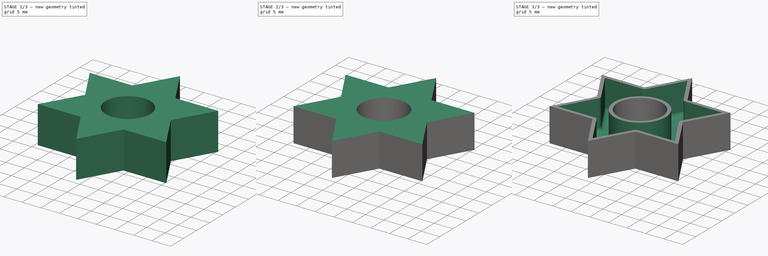
[diagram: build sequence overview — one tinted view per stage of 3, left to right]
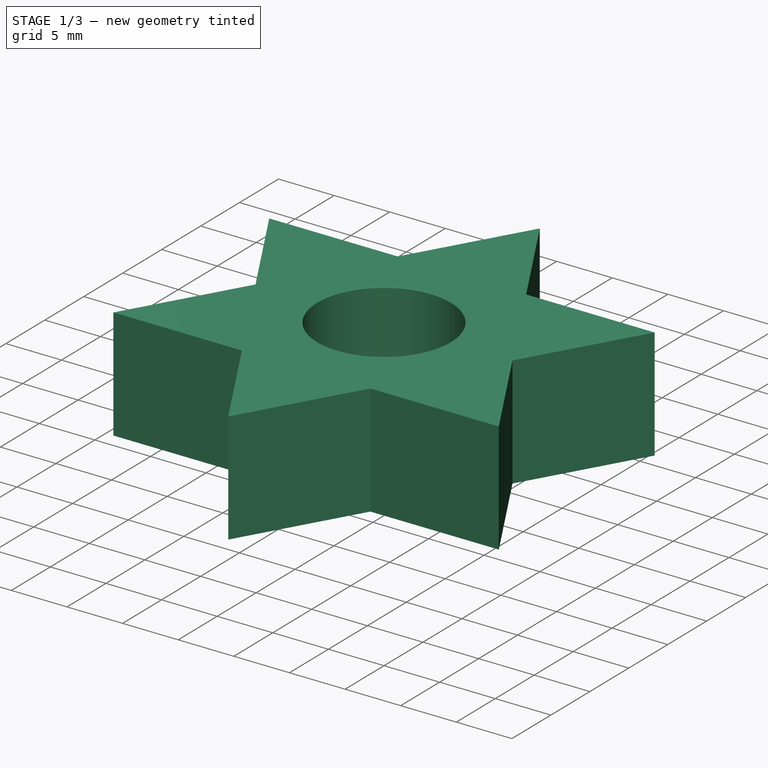
[diagram: stage 1 of 3 — iso view after this stage's code; geometry added in this stage tinted green]
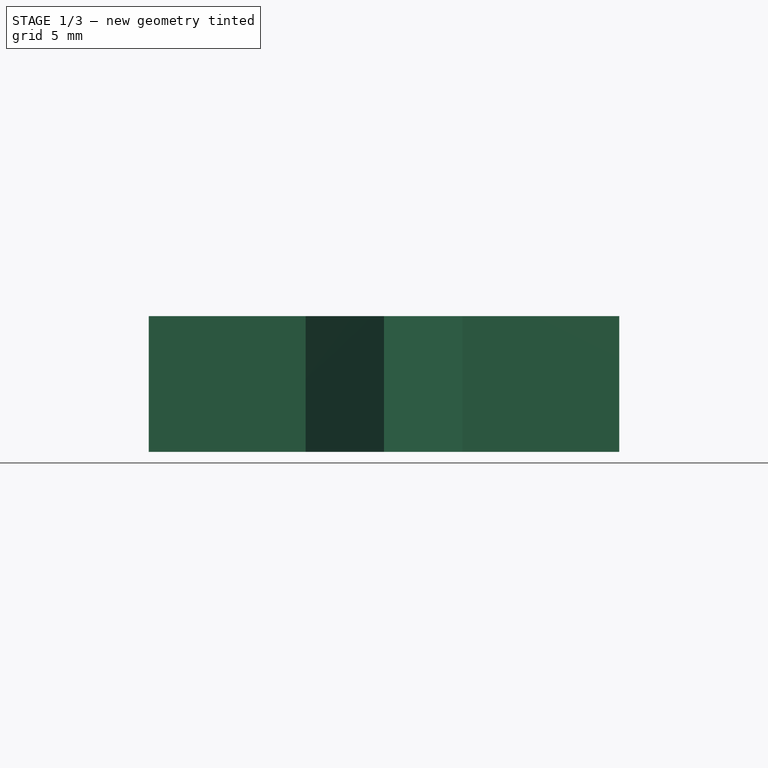
[diagram: stage 1 of 3 — front view after this stage's code; geometry added in this stage tinted green]
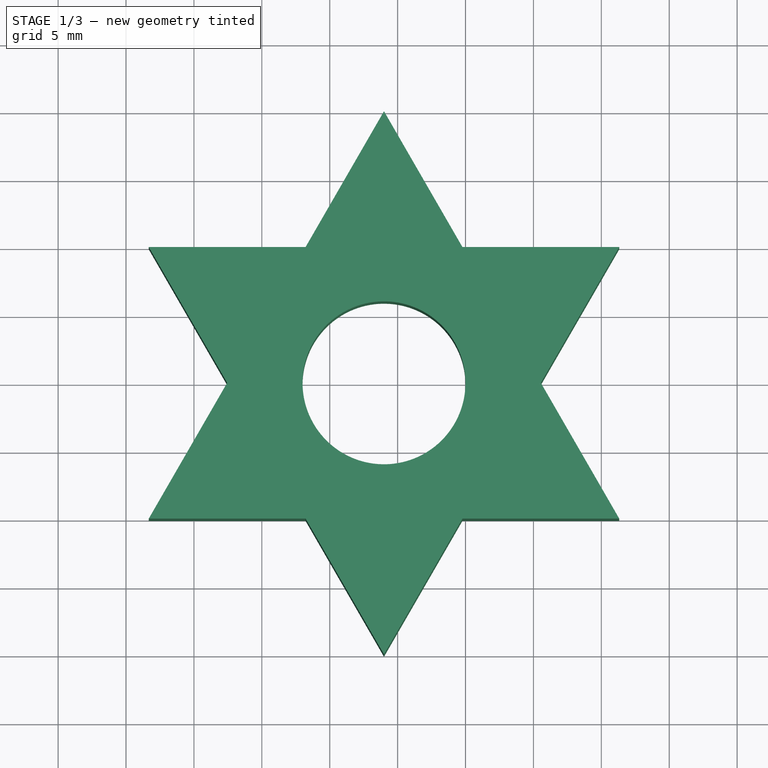
[diagram: stage 1 of 3 — top view after this stage's code; geometry added in this stage tinted green]
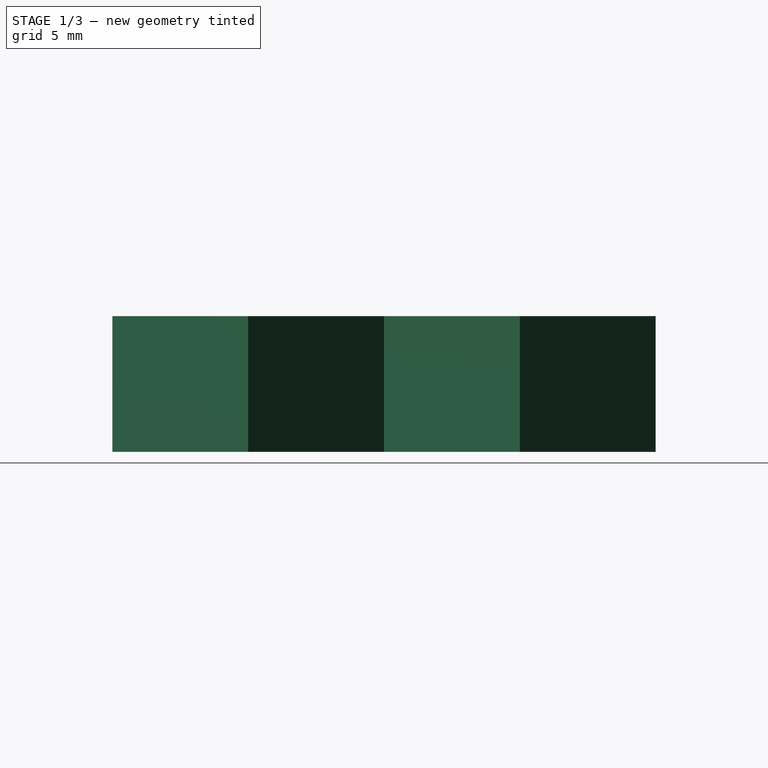
[diagram: stage 1 of 3 — right view after this stage's code; geometry added in this stage tinted green]
FCSTD DOCUMENT  (FreeCAD 0.20R25065 (Git))
Label: perimeter_overlap
License: All rights reserved
LicenseURL: http://en.wikipedia.org/wiki/All_rights_reserved
objects: Sketcher::SketchObject×2, PartDesign::Pad×1, PartDesign::PolarPattern×1, PartDesign::Pocket×1, PartDesign::Thickness×1, PartDesign::Fillet×1, PartDesign::Body×1
note: 12 computed .brp shape members not serialized (recipe doc carries the construction recipe); baked Part::Feature solids carry a one-line shape summary decoded from their .brp

FEATURE [Sketcher::SketchObject] Sketch001
  FullyConstrained = false
  MapMode = 5
  Support = -> [XY_Plane]
  sketch-geometry (7):
    g0: LineSegment StartX=0 StartY=0 StartZ=0 EndX=48 EndY=40 EndZ=0
    g1: LineSegment StartX=48 StartY=0 StartZ=0 EndX=0.0294474 EndY=39.9617 EndZ=0
    g2: LineSegment StartX=41.3194 StartY=9.99484 StartZ=0 EndX=23.9959 EndY=40 EndZ=0
    g3: LineSegment StartX=23.9959 StartY=40 StartZ=0 EndX=6.67239 EndY=9.99484 EndZ=0
    g4: LineSegment StartX=6.67239 StartY=9.99484 StartZ=0 EndX=41.3194 EndY=9.99484 EndZ=0
    g5: Circle CenterX=23.9959 CenterY=19.9966 CenterZ=0 NormalX=0 NormalY=0 NormalZ=1 AngleXU=0 Radius=20.0034
    g6: Circle CenterX=23.9959 CenterY=19.9966 CenterZ=0 NormalX=0 NormalY=0 NormalZ=1 AngleXU=0 Radius=6
  constraints (14):
    c: Coincident(g0,g-1)
    c: Coincident(g2,g3)
    c: Coincident(g3,g4)
    c: Coincident(g4,g2)
    c: Equal(g2,g3)
    c: Equal(g2,g4)
    c: PointOnObject(g2,g5)
    c: PointOnObject(g3,g5)
    c: PointOnObject(g4,g5)
    c: PointOnObject(g5,g1)
    c: Horizontal(g4)
    c: PointOnObject(g5,g0)
    c: Coincident(g6,g5)
    c: Diameter(g6) = 12
FEATURE [PartDesign::Pad] Pad001
  Direction = (0,0,1)
  Length = 10
  Length2 = 100
  Profile = -> Sketch001
  Type = 0
FEATURE [PartDesign::PolarPattern] PolarPattern
  Angle = 360
  Axis = -> Pad001 [Edge12]
  BaseFeature = -> Pad001
  Occurrences = 2
  Originals = -> [Pad001]
  Overlap = 0
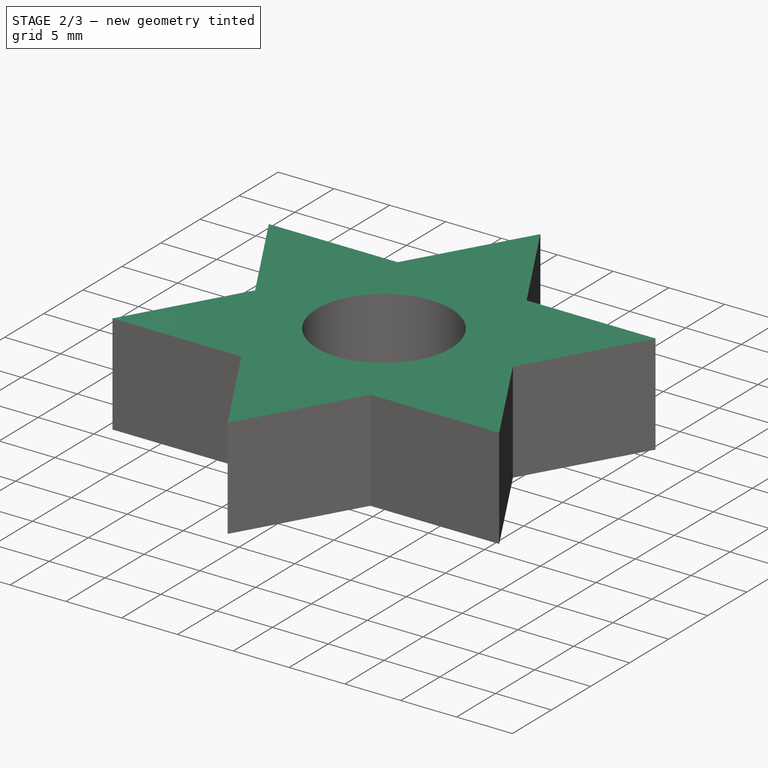
[diagram: stage 2 of 3 — iso view after this stage's code; geometry added in this stage tinted green]
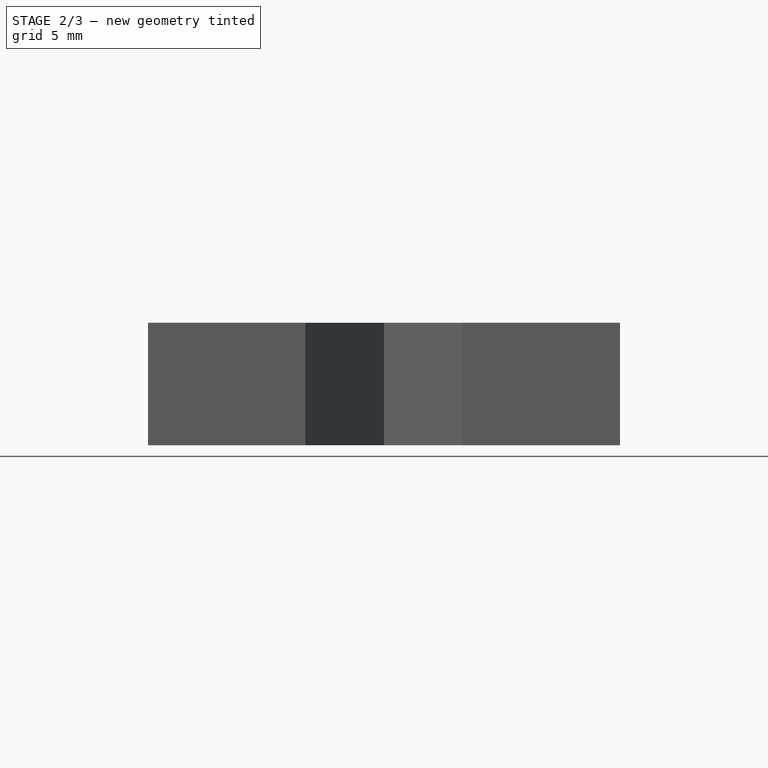
[diagram: stage 2 of 3 — front view after this stage's code; geometry added in this stage tinted green]
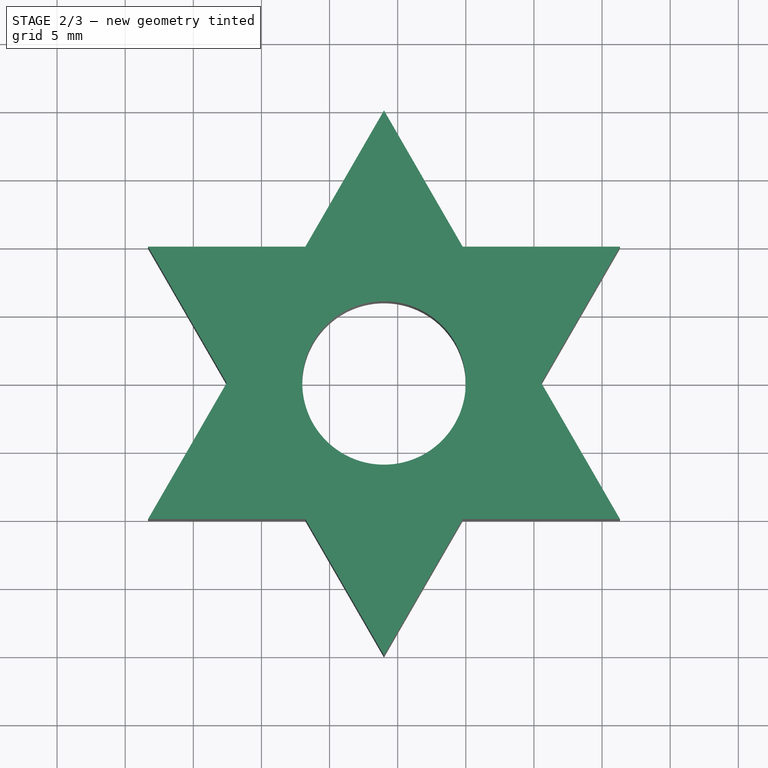
[diagram: stage 2 of 3 — top view after this stage's code; geometry added in this stage tinted green]
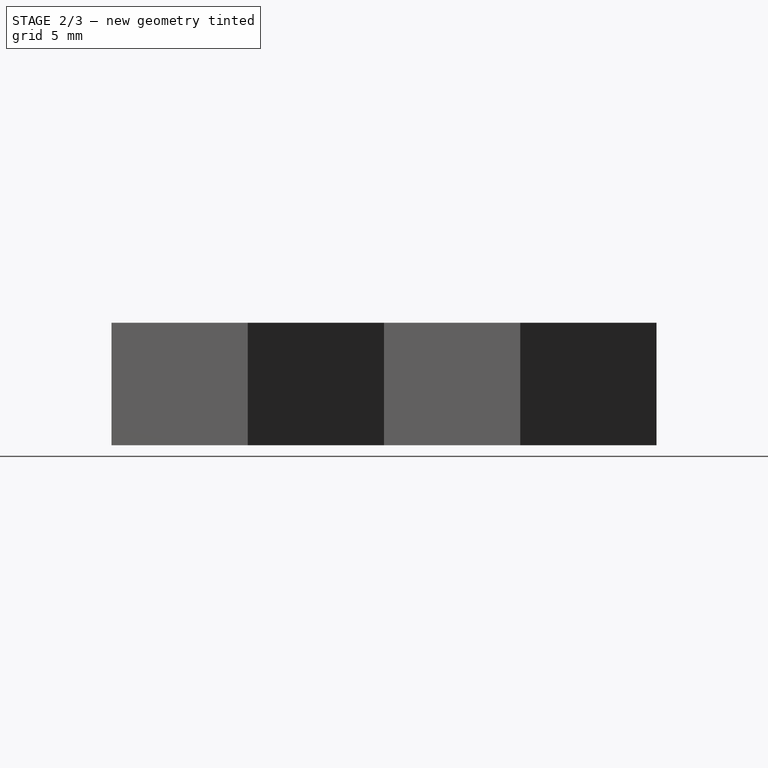
[diagram: stage 2 of 3 — right view after this stage's code; geometry added in this stage tinted green]
FEATURE [Sketcher::SketchObject] Sketch002
  FullyConstrained = false
  MapMode = 5
  Placement = pos=(0,0,10) rot=(0,0,1;0rad)
  Support = -> [PolarPattern]
  sketch-geometry (4):
    g0: LineSegment StartX=-10.0632 StartY=49.7722 StartZ=0 EndX=60.5544 EndY=49.7722 EndZ=0
    g1: LineSegment StartX=60.5544 StartY=49.7722 StartZ=0 EndX=60.5544 EndY=-9.65187 EndZ=0
    g2: LineSegment StartX=60.5544 StartY=-9.65187 StartZ=0 EndX=-10.0632 EndY=-9.65187 EndZ=0
    g3: LineSegment StartX=-10.0632 StartY=-9.65187 StartZ=0 EndX=-10.0632 EndY=49.7722 EndZ=0
  constraints (8):
    c: Coincident(g0,g1)
    c: Coincident(g1,g2)
    c: Coincident(g2,g3)
    c: Coincident(g3,g0)
    c: Horizontal(g0)
    c: Horizontal(g2)
    c: Vertical(g1)
    c: Vertical(g3)
FEATURE [PartDesign::Pocket] Pocket
  BaseFeature = -> PolarPattern
  Length = 1
  Length2 = 100
  Profile = -> Sketch002
  Type = 0
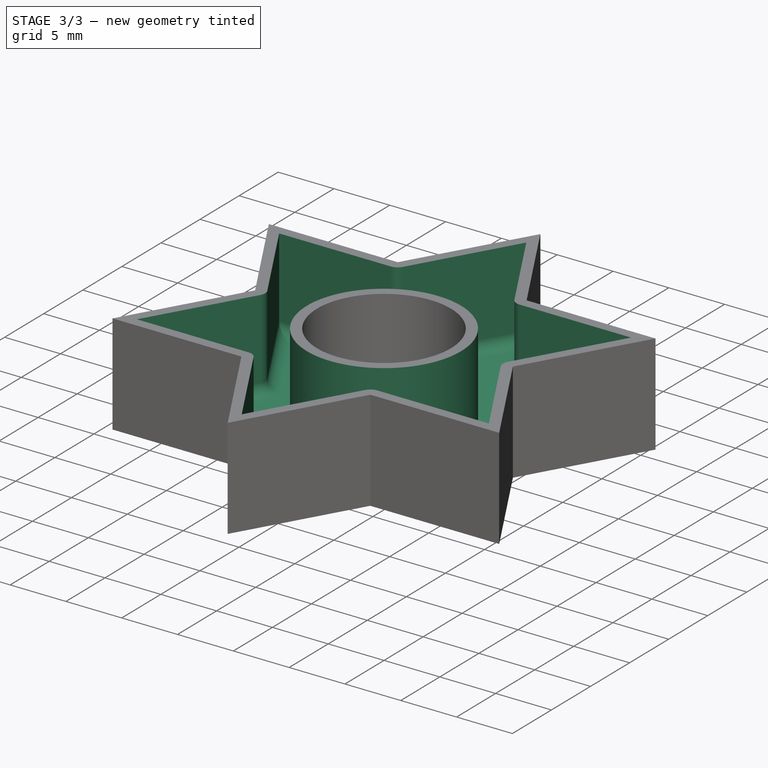
[diagram: stage 3 of 3 — iso view after this stage's code; geometry added in this stage tinted green]
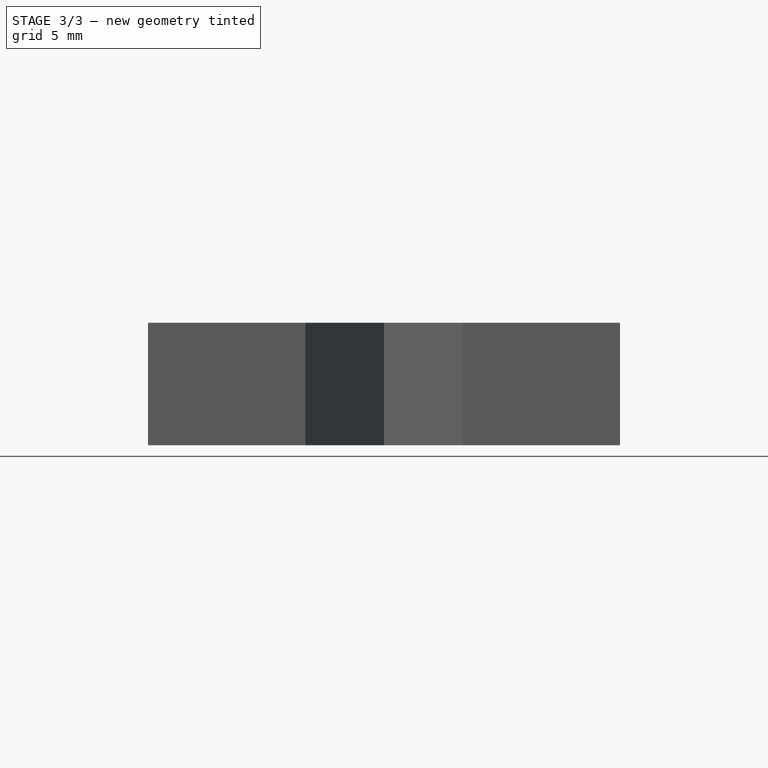
[diagram: stage 3 of 3 — front view after this stage's code; geometry added in this stage tinted green]
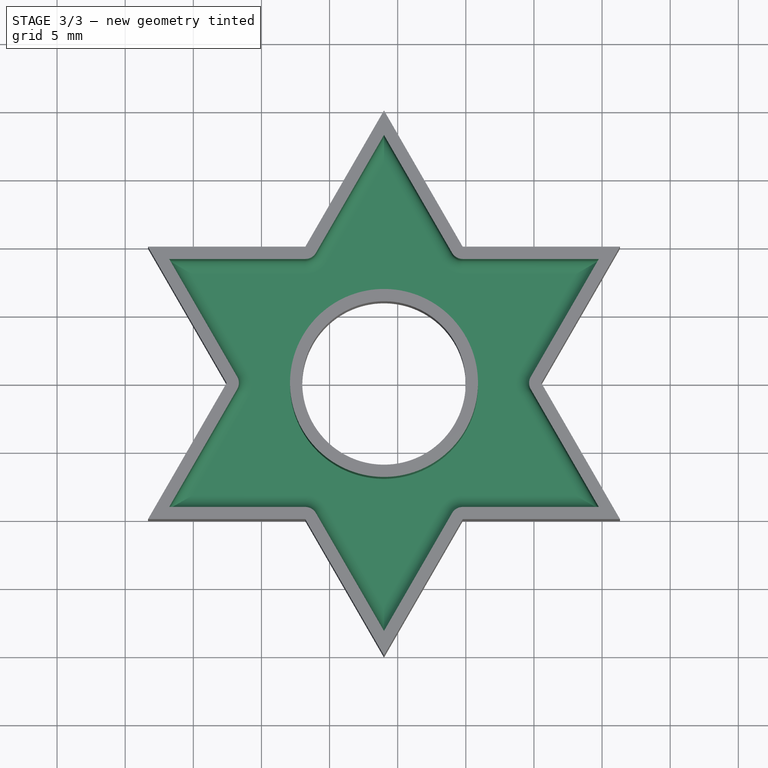
[diagram: stage 3 of 3 — top view after this stage's code; geometry added in this stage tinted green]
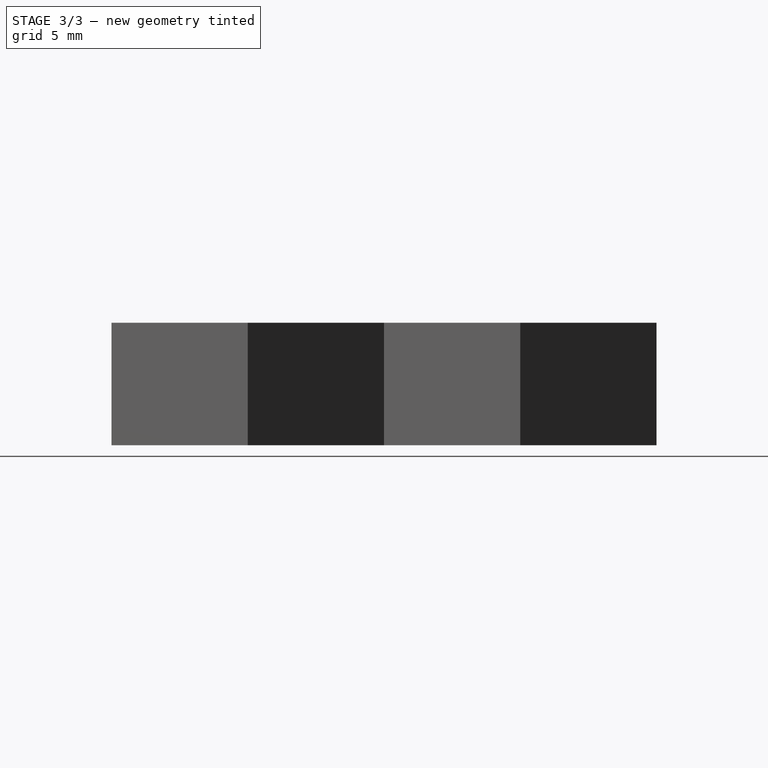
[diagram: stage 3 of 3 — right view after this stage's code; geometry added in this stage tinted green]
FEATURE [PartDesign::Thickness] Thickness
  Base = -> Pocket [Face4]
  BaseFeature = -> Pocket
  Intersection = true
  Join = 0
  Mode = 0
  Reversed = true
  SupportTransform = false
  Value = 0.9
FEATURE [PartDesign::Fillet] Fillet
  Base = -> Thickness [Edge107,Edge114,Edge79,Edge87,Edge91,Edge99]
  BaseFeature = -> Thickness
  Radius = 1
  SupportTransform = false
FEATURE [PartDesign::Body] Body  label="perimeter_overlap"
  Group = -> [Sketch001,Pad001,PolarPattern,Sketch002,Pocket,Thickness,Fillet]
  Origin = -> Origin
  Tip = -> Fillet
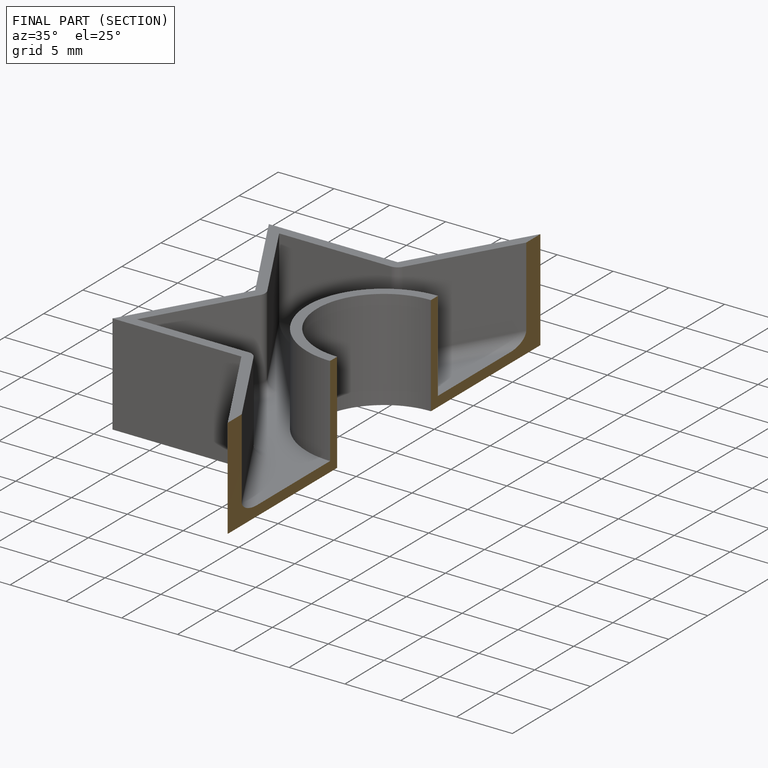
[diagram: finished part — half-section view (interior)]
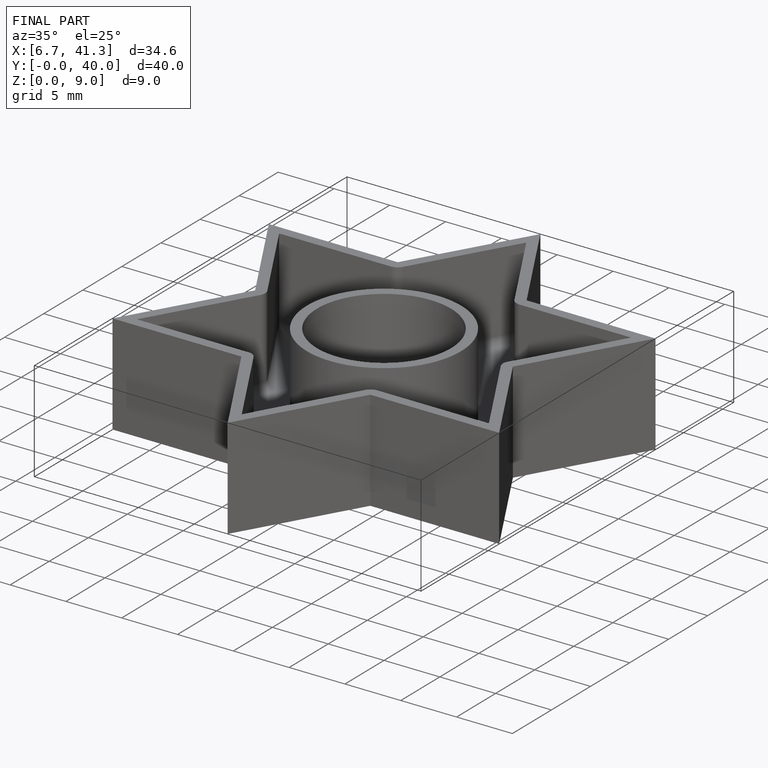
[diagram: finished part — iso view with bounding-box wireframe]
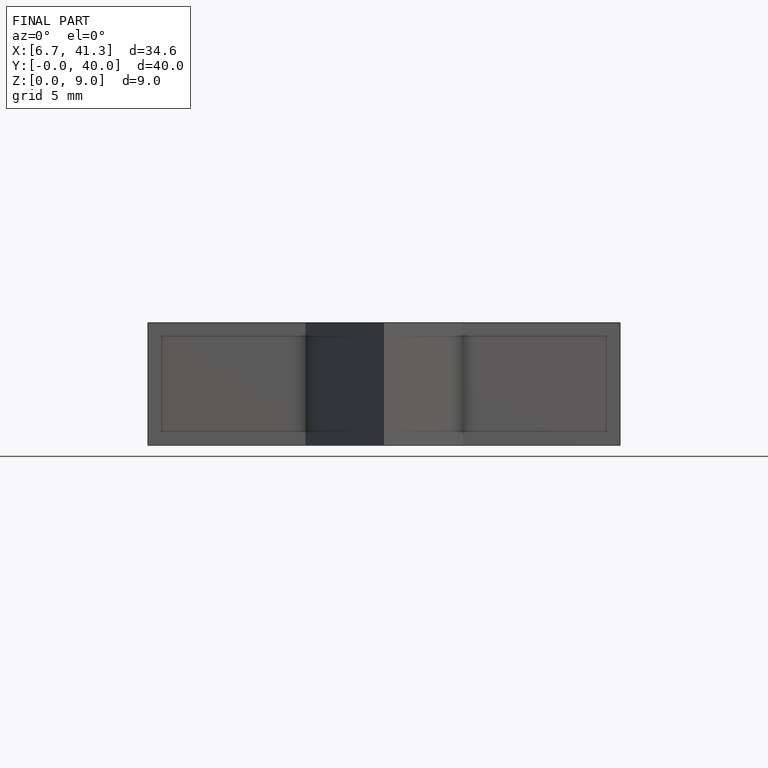
[diagram: finished part — front view with bounding-box wireframe]
